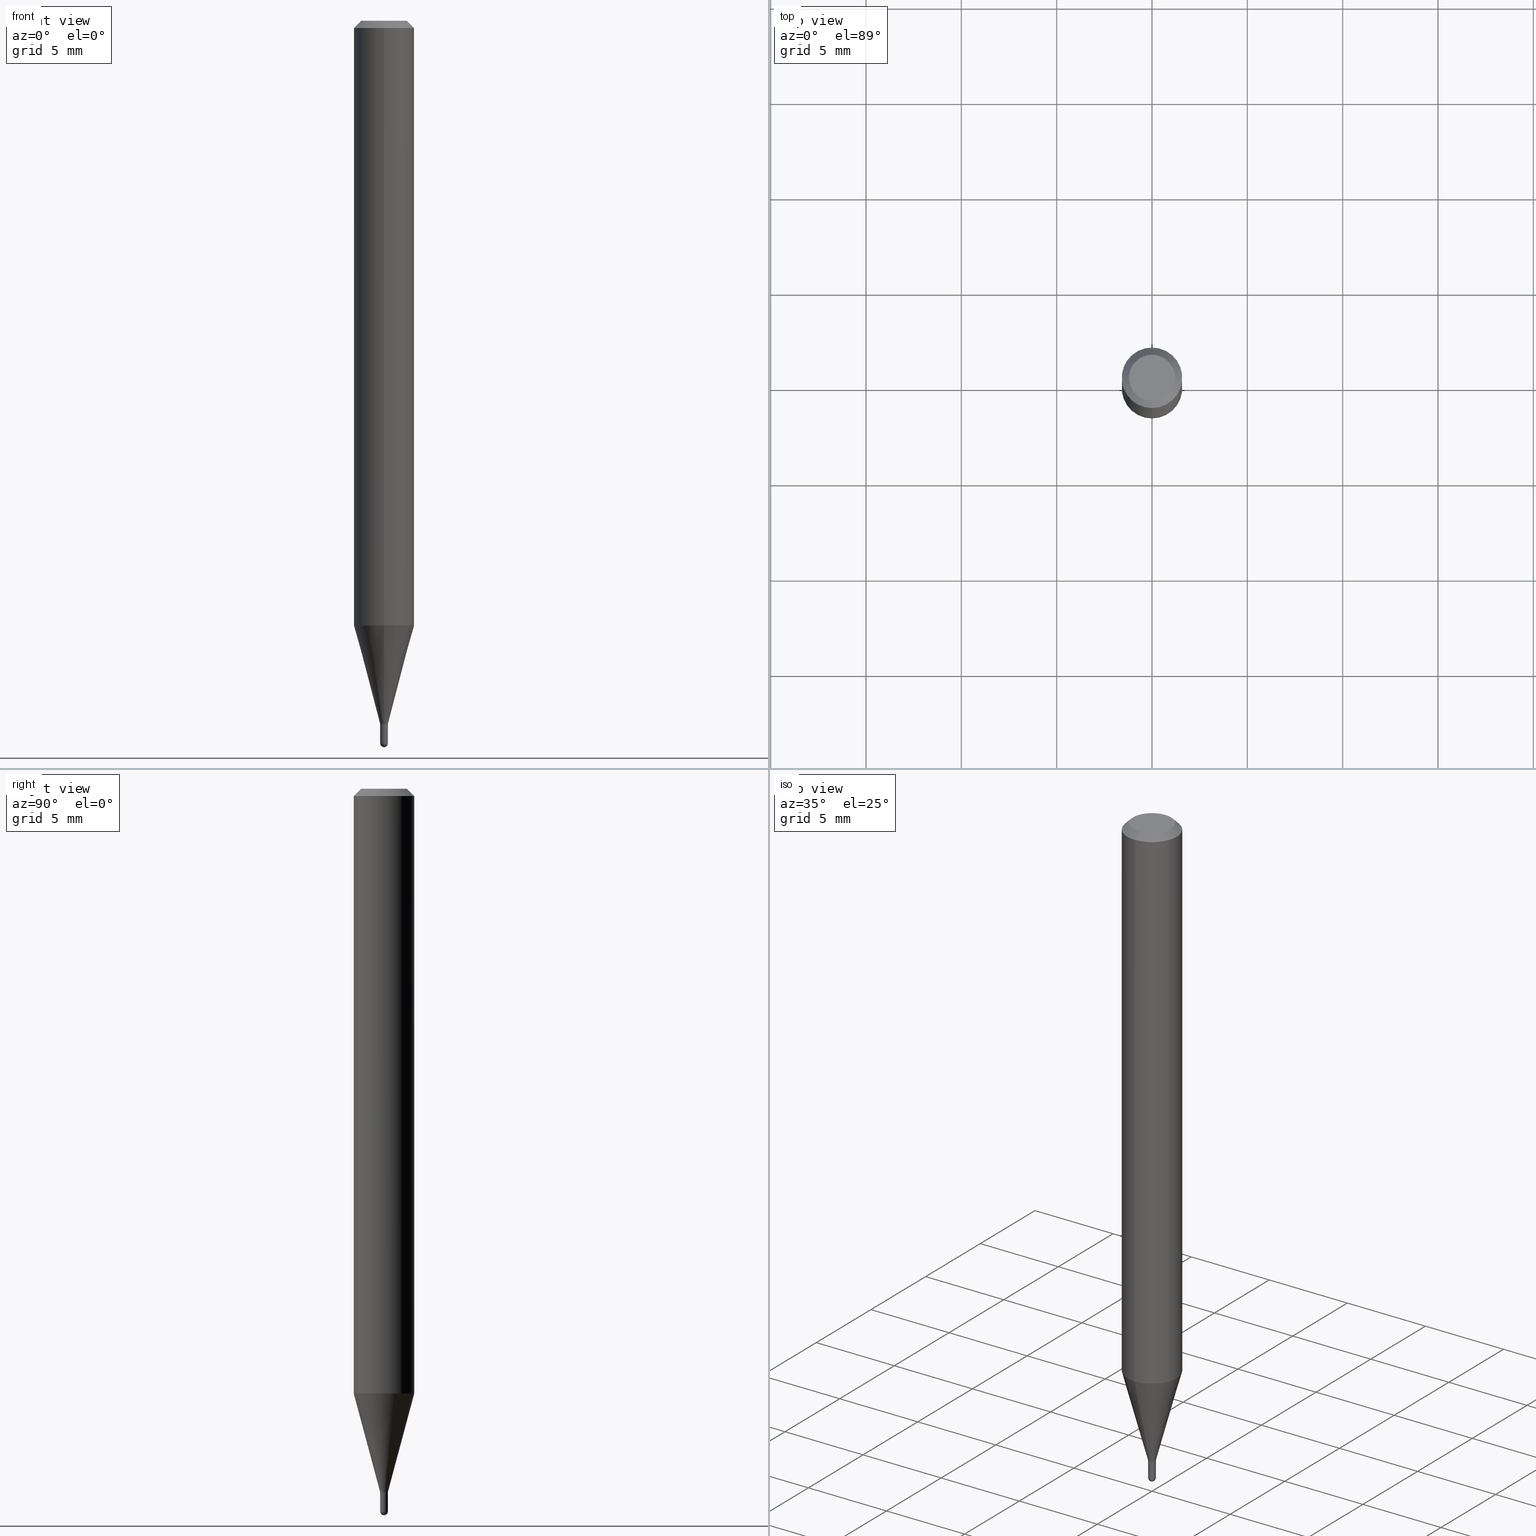
[diagram: canonical four-view strip — front | top / right | iso, engineering-drawing reading convention]
A machine part, canonical four-view strip (front | top / right | iso — engineering-drawing reading convention). The complete STEP part file that produces these views, byte-faithful:
ISO-10303-21;
HEADER;
FILE_DESCRIPTION (( 'STEP AP203' ),
    '1' );
FILE_NAME ('01439.STEP',
    '2024-03-07T20:53:44',
    ( '' ),
    ( '' ),
    'SwSTEP 2.0',
    'SolidWorks 2023',
    '' );
FILE_SCHEMA (( 'CONFIG_CONTROL_DESIGN' ));
ENDSEC;

DATA;
#1 = APPROVAL_DATE_TIME ( #203, #354 ) ;
#2 = DIRECTION ( 'NONE',  ( 2.445475665972653813E-29, -3.491471515236986079E-15, -1.000000000000000000 ) ) ;
#3 = FACE_OUTER_BOUND ( 'NONE', #48, .T. ) ;
#4 = EDGE_CURVE ( 'NONE', #292, #449, #410, .T. ) ;
#5 = AXIS2_PLACEMENT_3D ( 'NONE', #215, #18, #140 ) ;
#6 = APPLICATION_CONTEXT ( 'configuration controlled 3d designs of mechanical parts and assemblies' ) ;
#7 = CC_DESIGN_DATE_AND_TIME_ASSIGNMENT ( #251, #399, ( #351 ) ) ;
#8 = MECHANICAL_CONTEXT ( 'NONE', #281, 'mechanical' ) ;
#9 = LENGTH_MEASURE_WITH_UNIT ( LENGTH_MEASURE( 0.02539999999999999897 ), #484 );
#10 = EDGE_LOOP ( 'NONE', ( #379, #16, #110, #70 ) ) ;
#11 = DIRECTION ( 'NONE',  ( 5.024295867788190974E-15, 0.7071067811865681119, 0.7071067811865270336 ) ) ;
#12 = PRODUCT_DEFINITION_FORMATION_WITH_SPECIFIED_SOURCE ( 'ANY', '', #426, .NOT_KNOWN. ) ;
#13 = SPHERICAL_SURFACE ( 'NONE', #385, 0.008000000000000149353 ) ;
#14 = CARTESIAN_POINT ( 'NONE',  ( 3.668213498958982944E-31, -5.237207272855482496E-17, -0.01500000000000000812 ) ) ;
#15 = ORIENTED_EDGE ( 'NONE', *, *, #463, .T. ) ;
#16 = ORIENTED_EDGE ( 'NONE', *, *, #245, .T. ) ;
#17 = VERTEX_POINT ( 'NONE', #329 ) ;
#18 = DIRECTION ( 'NONE',  ( -2.445475665972653813E-29, 3.491471515236986079E-15, 1.000000000000000000 ) ) ;
#19 = CARTESIAN_POINT ( 'NONE',  ( -5.586370142145429179E-17, -0.008000000000005020456, -1.451500000000000457 ) ) ;
#20 = CIRCLE ( 'NONE', #5, 0.007500000000000001457 ) ;
#21 = DIRECTION ( 'NONE',  ( 1.000000000000000000, -6.982962677686211490E-15, 0.000000000000000000 ) ) ;
#22 = DIRECTION ( 'NONE',  ( -2.445475665972653813E-29, 3.491471515236986079E-15, 1.000000000000000000 ) ) ;
#23 = ORIENTED_EDGE ( 'NONE', *, *, #125, .F. ) ;
#24 = ORIENTED_EDGE ( 'NONE', *, *, #82, .F. ) ;
#25 = DIRECTION ( 'NONE',  ( 6.982962677686265922E-15, 1.000000000000000000, -3.483106191921935554E-15 ) ) ;
#26 = EDGE_LOOP ( 'NONE', ( #475, #294, #132, #405 ) ) ;
#27 = EDGE_CURVE ( 'NONE', #235, #134, #436, .T. ) ;
#28 = CARTESIAN_POINT ( 'NONE',  ( 3.549607929159307835E-29, -5.067870904366486993E-15, -1.451500000000000457 ) ) ;
#29 = APPROVAL ( #65, 'UNSPECIFIED' ) ;
#30 = AXIS2_PLACEMENT_3D ( 'NONE', #28, #341, #320 ) ;
#31 = CARTESIAN_POINT ( 'NONE',  ( 5.684341886080747371E-17, 0.007999999999999925573, -2.793177212189562767E-17 ) ) ;
#32 = CARTESIAN_POINT ( 'NONE',  ( 3.550830666992293868E-29, -5.069616640124104724E-15, -1.452000000000000179 ) ) ;
#33 = EDGE_CURVE ( 'NONE', #222, #292, #20, .T. ) ;
#34 = DIRECTION ( 'NONE',  ( -2.445475665972653813E-29, 3.491471515236985685E-15, 1.000000000000000000 ) ) ;
#35 = AXIS2_PLACEMENT_3D ( 'NONE', #298, #133, #457 ) ;
#36 = CARTESIAN_POINT ( 'NONE',  ( 3.550830666992293868E-29, -5.069616640124104724E-15, -1.452000000000000179 ) ) ;
#37 = AXIS2_PLACEMENT_3D ( 'NONE', #312, #509, #186 ) ;
#38 = DIRECTION ( 'NONE',  ( -2.445475665972653813E-29, 3.491471515236986079E-15, 1.000000000000000000 ) ) ;
#39 =( NAMED_UNIT ( * ) SI_UNIT ( $, .STERADIAN. ) SOLID_ANGLE_UNIT ( ) );
#40 = PRODUCT_DEFINITION_SHAPE ( 'NONE', 'NONE',  #297 ) ;
#41 = PLANE ( 'NONE',  #193 ) ;
#42 = AXIS2_PLACEMENT_3D ( 'NONE', #456, #147, #224 ) ;
#43 = AXIS2_PLACEMENT_3D ( 'NONE', #188, #2, #347 ) ;
#44 = COORDINATED_UNIVERSAL_TIME_OFFSET ( 5, 0, .BEHIND. ) ;
#45 = EDGE_CURVE ( 'NONE', #292, #222, #350, .T. ) ;
#46 = DATE_AND_TIME ( #402, #228 ) ;
#47 = CARTESIAN_POINT ( 'NONE',  ( 3.647955325796880596E-29, -5.210269874993290915E-15, -1.491999999999999993 ) ) ;
#48 = EDGE_LOOP ( 'NONE', ( #403, #369, #24, #128 ) ) ;
#49 = DIRECTION ( 'NONE',  ( -2.445475665972653813E-29, 3.491471515236986079E-15, 1.000000000000000000 ) ) ;
#50 = DIRECTION ( 'NONE',  ( 0.000000000000000000, 0.000000000000000000, 1.000000000000000000 ) ) ;
#51 = EDGE_LOOP ( 'NONE', ( #306, #194, #427, #119 ) ) ;
#52 = PERSON_AND_ORGANIZATION ( #476, #447 ) ;
#53 = VERTEX_POINT ( 'NONE', #289 ) ;
#54 = MANIFOLD_SOLID_BREP ( 'Body-Move/Copy2[1]', #357 ) ;
#55 = DATE_AND_TIME ( #340, #184 ) ;
#56 = MANIFOLD_SOLID_BREP ( 'Body-Move/Copy2[2]', #244 ) ;
#57 = DIRECTION ( 'NONE',  ( -6.982962677686265922E-15, -1.000000000000000000, 3.491471515236985685E-15 ) ) ;
#58 = EDGE_LOOP ( 'NONE', ( #260, #15 ) ) ;
#59 = EDGE_CURVE ( 'NONE', #223, #342, #96, .T. ) ;
#60 = CARTESIAN_POINT ( 'NONE',  ( -0.008000000000000000167, -5.082617111916303545E-15, -1.492000000000000437 ) ) ;
#61 = AXIS2_PLACEMENT_3D ( 'NONE', #258, #265, #57 ) ;
#62 = CC_DESIGN_SECURITY_CLASSIFICATION ( #351, ( #12 ) ) ;
#63 = DIRECTION ( 'NONE',  ( 1.000000000000000000, -6.982962677686211490E-15, 0.000000000000000000 ) ) ;
#64 = ORIENTED_EDGE ( 'NONE', *, *, #168, .F. ) ;
#65 = APPROVAL_STATUS ( 'not_yet_approved' ) ;
#66 = CYLINDRICAL_SURFACE ( 'NONE', #302, 0.06250000000000000000 ) ;
#67 = CARTESIAN_POINT ( 'NONE',  ( 0.000000000000000000, 0.000000000000000000, 0.000000000000000000 ) ) ;
#68 = CARTESIAN_POINT ( 'NONE',  ( -4.364351673553912750E-16, -0.06250000000000005551, -0.01499999999999979128 ) ) ;
#69 = CC_DESIGN_PERSON_AND_ORGANIZATION_ASSIGNMENT ( #249, #404, ( #12 ) ) ;
#70 = ORIENTED_EDGE ( 'NONE', *, *, #397, .F. ) ;
#71 = DIRECTION ( 'NONE',  ( -2.445475665972653813E-29, 3.491471515236986079E-15, 1.000000000000000000 ) ) ;
#72 = CONICAL_SURFACE ( 'NONE', #318, 0.06250000000000000000, 0.7853981633974483900 ) ;
#73 = DIRECTION ( 'NONE',  ( -6.982962677686266711E-15, -1.000000000000000000, 3.491471515236986474E-15 ) ) ;
#74 = CARTESIAN_POINT ( 'NONE',  ( 3.550830666992293868E-29, -5.069616640124104724E-15, -1.452000000000000179 ) ) ;
#75 = EDGE_LOOP ( 'NONE', ( #367, #481, #416, #214, #443 ) ) ;
#76 = CC_DESIGN_PERSON_AND_ORGANIZATION_ASSIGNMENT ( #52, #491, ( #12 ) ) ;
#77 = DIRECTION ( 'NONE',  ( -6.982962677686265922E-15, -1.000000000000000000, 3.491471515236986079E-15 ) ) ;
#78 = DIRECTION ( 'NONE',  ( -6.982962677686265922E-15, -1.000000000000000000, 0.000000000000000000 ) ) ;
#79 = ORIENTED_EDGE ( 'NONE', *, *, #59, .T. ) ;
#80 = LINE ( 'NONE', #234, #495 ) ;
#81 = AXIS2_PLACEMENT_3D ( 'NONE', #201, #50, #359 ) ;
#82 = EDGE_CURVE ( 'NONE', #17, #92, #382, .T. ) ;
#83 = LINE ( 'NONE', #270, #174 ) ;
#84 = CARTESIAN_POINT ( 'NONE',  ( -4.364351673553916201E-16, -0.06250000000000000000, 2.182169697023116300E-16 ) ) ;
#85 = CARTESIAN_POINT ( 'NONE',  ( 0.000000000000000000, 0.000000000000000000, 0.000000000000000000 ) ) ;
#86 = EDGE_CURVE ( 'NONE', #109, #17, #189, .T. ) ;
#87 = CALENDAR_DATE ( 2024, 7, 3 ) ;
#88 = AXIS2_PLACEMENT_3D ( 'NONE', #279, #154, #431 ) ;
#89 = COORDINATED_UNIVERSAL_TIME_OFFSET ( 5, 0, .BEHIND. ) ;
#90 = DIRECTION ( 'NONE',  ( 2.445475665972653813E-29, -3.491471515236985685E-15, -1.000000000000000000 ) ) ;
#91 = DIRECTION ( 'NONE',  ( -2.445475665972653813E-29, 3.491471515236986079E-15, 1.000000000000000000 ) ) ;
#92 = VERTEX_POINT ( 'NONE', #219 ) ;
#93 =( NAMED_UNIT ( * ) PLANE_ANGLE_UNIT ( ) SI_UNIT ( $, .RADIAN. ) );
#94 = ORIENTED_EDGE ( 'NONE', *, *, #480, .T. ) ;
#95 = CONICAL_SURFACE ( 'NONE', #216, 0.007999999999999923839, 0.2617993877991576235 ) ;
#96 = CIRCLE ( 'NONE', #293, 0.04749999999999999362 ) ;
#97 = ADVANCED_FACE ( 'NONE', ( #501 ), #150, .F. ) ;
#98 = EDGE_LOOP ( 'NONE', ( #64, #510, #313, #498 ) ) ;
#99 = DIRECTION ( 'NONE',  ( -2.445468806185136597E-29, 3.491481338843145583E-15, 1.000000000000000000 ) ) ;
#100 = CARTESIAN_POINT ( 'NONE',  ( 2.166883706557991878E-46, -3.093718266572590638E-32, -8.860786213123673200E-18 ) ) ;
#101 = DIRECTION ( 'NONE',  ( -6.982962677686265922E-15, -1.000000000000000000, 0.000000000000000000 ) ) ;
#102 = VERTEX_POINT ( 'NONE', #60 ) ;
#103 = AXIS2_PLACEMENT_3D ( 'NONE', #420, #143, #73 ) ;
#104 = LOCAL_TIME ( 15, 53, 44.00000000000000000, #44 ) ;
#105 = ORIENTED_EDGE ( 'NONE', *, *, #380, .F. ) ;
#106 = CARTESIAN_POINT ( 'NONE',  ( 3.648639458828225116E-29, -5.209290157553974120E-15, -1.492000000000000437 ) ) ;
#107 = CARTESIAN_POINT ( 'NONE',  ( 5.506706202144299774E-17, 0.007499999999994930860, -1.452000000000000179 ) ) ;
#108 = DIRECTION ( 'NONE',  ( -6.982962677686265922E-15, -1.000000000000000000, 0.000000000000000000 ) ) ;
#109 = VERTEX_POINT ( 'NONE', #504 ) ;
#110 = ORIENTED_EDGE ( 'NONE', *, *, #175, .F. ) ;
#111 = PLANE ( 'NONE',  #155 ) ;
#112 = EDGE_CURVE ( 'NONE', #342, #223, #238, .T. ) ;
#113 =( GEOMETRIC_REPRESENTATION_CONTEXT ( 3 ) GLOBAL_UNCERTAINTY_ASSIGNED_CONTEXT ( ( #266 ) ) GLOBAL_UNIT_ASSIGNED_CONTEXT ( ( #444, #93, #39 ) ) REPRESENTATION_CONTEXT ( 'NONE', 'WORKASPACE' ) );
#114 = CARTESIAN_POINT ( 'NONE',  ( 0.008000000000000000167, -5.195324232198600513E-15, -1.492000000000000437 ) ) ;
#115 = CARTESIAN_POINT ( 'NONE',  ( 5.684341886084278756E-17, 0.007999999999994830691, -1.451500000000000457 ) ) ;
#116 = PRODUCT_RELATED_PRODUCT_CATEGORY ( 'detail', '', ( #426 ) ) ;
#117 = CARTESIAN_POINT ( 'NONE',  ( 2.504663143554681771E-16, 0.007999999999994853242, -1.452000000000000179 ) ) ;
#118 = EDGE_LOOP ( 'NONE', ( #299, #181, #218, #465 ) ) ;
#119 = ORIENTED_EDGE ( 'NONE', *, *, #324, .F. ) ;
#120 = DIRECTION ( 'NONE',  ( -2.445475665972653813E-29, 3.491471515236985685E-15, 1.000000000000000000 ) ) ;
#121 = AXIS2_PLACEMENT_3D ( 'NONE', #67, #141, #383 ) ;
#122 = FACE_OUTER_BOUND ( 'NONE', #409, .T. ) ;
#123 = ADVANCED_FACE ( 'NONE', ( #230 ), #66, .T. ) ;
#124 = SECURITY_CLASSIFICATION_LEVEL ( 'unclassified' ) ;
#125 = EDGE_CURVE ( 'NONE', #134, #235, #429, .T. ) ;
#126 = PERSON_AND_ORGANIZATION ( #476, #447 ) ;
#127 = APPROVAL_STATUS ( 'not_yet_approved' ) ;
#128 = ORIENTED_EDGE ( 'NONE', *, *, #86, .F. ) ;
#129 = AXIS2_PLACEMENT_3D ( 'NONE', #462, #71, #225 ) ;
#130 = AXIS2_PLACEMENT_3D ( 'NONE', #353, #240, #393 ) ;
#131 = DIRECTION ( 'NONE',  ( -2.445475665972653813E-29, 3.491471515236986079E-15, 1.000000000000000000 ) ) ;
#132 = ORIENTED_EDGE ( 'NONE', *, *, #27, .F. ) ;
#133 = DIRECTION ( 'NONE',  ( -2.445475665972653813E-29, 3.491471515236986079E-15, 1.000000000000000000 ) ) ;
#134 = VERTEX_POINT ( 'NONE', #381 ) ;
#135 = ORIENTED_EDGE ( 'NONE', *, *, #211, .T. ) ;
#136 = ORIENTED_EDGE ( 'NONE', *, *, #452, .F. ) ;
#137 = FACE_OUTER_BOUND ( 'NONE', #212, .T. ) ;
#138 = ORIENTED_EDGE ( 'NONE', *, *, #445, .F. ) ;
#139 = AXIS2_PLACEMENT_3D ( 'NONE', #14, #441, #144 ) ;
#140 = DIRECTION ( 'NONE',  ( -6.982962677686265922E-15, -1.000000000000000000, 0.000000000000000000 ) ) ;
#141 = DIRECTION ( 'NONE',  ( -2.445468806185136597E-29, 3.491481338843145583E-15, 1.000000000000000000 ) ) ;
#142 = EDGE_CURVE ( 'NONE', #449, #170, #364, .T. ) ;
#143 = DIRECTION ( 'NONE',  ( -2.445475665972653813E-29, 3.491471515236986079E-15, 1.000000000000000000 ) ) ;
#144 = DIRECTION ( 'NONE',  ( -6.982962677686265922E-15, -1.000000000000000000, 3.483106191921935554E-15 ) ) ;
#145 = CARTESIAN_POINT ( 'NONE',  ( 0.000000000000000000, 0.000000000000000000, 0.000000000000000000 ) ) ;
#146 = CARTESIAN_POINT ( 'NONE',  ( -5.237222008261149419E-17, -0.007500000000005071187, -1.452000000000000179 ) ) ;
#147 = DIRECTION ( 'NONE',  ( -2.445475665972653813E-29, 3.491471515236986079E-15, 1.000000000000000000 ) ) ;
#148 = AXIS2_PLACEMENT_3D ( 'NONE', #164, #91, #253 ) ;
#149 = APPROVAL_PERSON_ORGANIZATION ( #360, #354, #197 ) ;
#150 = CYLINDRICAL_SURFACE ( 'NONE', #129, 0.007999999999999925573 ) ;
#151 = CARTESIAN_POINT ( 'NONE',  ( 0.000000000000000000, 0.000000000000000000, 0.000000000000000000 ) ) ;
#152 = FACE_OUTER_BOUND ( 'NONE', #26, .T. ) ;
#153 = EDGE_CURVE ( 'NONE', #17, #235, #233, .T. ) ;
#154 = DIRECTION ( 'NONE',  ( -2.445468806185136597E-29, 3.491481338843145583E-15, 1.000000000000000000 ) ) ;
#155 = AXIS2_PLACEMENT_3D ( 'NONE', #277, #159, #472 ) ;
#156 = EDGE_LOOP ( 'NONE', ( #173, #500, #231, #273 ) ) ;
#157 = DIRECTION ( 'NONE',  ( -2.445468806185136597E-29, 3.491481338843145583E-15, 1.000000000000000000 ) ) ;
#158 = VERTEX_POINT ( 'NONE', #114 ) ;
#159 = DIRECTION ( 'NONE',  ( 2.438088387897960049E-29, -3.491481338843145188E-15, -1.000000000000000000 ) ) ;
#160 = CARTESIAN_POINT ( 'NONE',  ( 3.053428817834770725E-29, -4.359462614825733098E-15, -1.248603230987502810 ) ) ;
#161 = DESIGN_CONTEXT ( 'detailed design', #6, 'design' ) ;
#162 = AXIS2_PLACEMENT_3D ( 'NONE', #85, #131, #330 ) ;
#163 = PERSON_AND_ORGANIZATION ( #476, #447 ) ;
#164 = CARTESIAN_POINT ( 'NONE',  ( 3.053428817834770725E-29, -4.359462614825733098E-15, -1.248603230987502810 ) ) ;
#165 = VECTOR ( 'NONE', #344, 39.37007874015748143 ) ;
#166 = CIRCLE ( 'NONE', #130, 0.007999999999999923839 ) ;
#167 = ADVANCED_FACE ( 'NONE', ( #422 ), #283, .T. ) ;
#168 = EDGE_CURVE ( 'NONE', #342, #235, #226, .T. ) ;
#169 = VERTEX_POINT ( 'NONE', #459 ) ;
#170 = VERTEX_POINT ( 'NONE', #19 ) ;
#171 = FACE_OUTER_BOUND ( 'NONE', #98, .T. ) ;
#172 = PLANE ( 'NONE',  #61 ) ;
#173 = ORIENTED_EDGE ( 'NONE', *, *, #245, .F. ) ;
#174 = VECTOR ( 'NONE', #34, 39.37007874015748143 ) ;
#175 = EDGE_CURVE ( 'NONE', #102, #451, #373, .T. ) ;
#176 = CIRCLE ( 'NONE', #37, 0.008000000000000149353 ) ;
#177 = DIRECTION ( 'NONE',  ( 2.445475665972653813E-29, -3.491471515236986079E-15, -1.000000000000000000 ) ) ;
#178 = LINE ( 'NONE', #146, #319 ) ;
#179 = CYLINDRICAL_SURFACE ( 'NONE', #121, 0.008000000000000000167 ) ;
#180 = LINE ( 'NONE', #502, #494 ) ;
#181 = ORIENTED_EDGE ( 'NONE', *, *, #442, .F. ) ;
#182 = APPROVAL_ROLE ( '' ) ;
#183 = AXIS2_PLACEMENT_3D ( 'NONE', #47, #300, #268 ) ;
#184 = LOCAL_TIME ( 15, 53, 44.00000000000000000, #448 ) ;
#185 = ADVANCED_FACE ( 'NONE', ( #171 ), #72, .T. ) ;
#186 = DIRECTION ( 'NONE',  ( 7.105427357601001859E-15, 1.000000000000000000, 0.000000000000000000 ) ) ;
#187 = ORIENTED_EDGE ( 'NONE', *, *, #112, .T. ) ;
#188 = CARTESIAN_POINT ( 'NONE',  ( 3.668213498958982944E-31, -5.237207272855482496E-17, -0.01500000000000000812 ) ) ;
#189 = LINE ( 'NONE', #308, #310 ) ;
#190 = FACE_OUTER_BOUND ( 'NONE', #227, .T. ) ;
#191 = ADVANCED_FACE ( 'NONE', ( #296 ), #337, .T. ) ;
#192 = AXIS2_PLACEMENT_3D ( 'NONE', #338, #378, #63 ) ;
#193 = AXIS2_PLACEMENT_3D ( 'NONE', #321, #90, #282 ) ;
#194 = ORIENTED_EDGE ( 'NONE', *, *, #168, .T. ) ;
#195 = DIRECTION ( 'NONE',  ( -2.445468806185136877E-29, 3.491481338843145188E-15, 1.000000000000000000 ) ) ;
#196 = DIRECTION ( 'NONE',  ( 4.937700262164548042E-15, 0.7071067811865451302, -0.7071067811865499042 ) ) ;
#197 = APPROVAL_ROLE ( '' ) ;
#198 = APPROVAL_STATUS ( 'not_yet_approved' ) ;
#199 = CIRCLE ( 'NONE', #503, 0.008000000000000000167 ) ;
#200 = ADVANCED_FACE ( 'NONE', ( #261 ), #179, .T. ) ;
#201 = CARTESIAN_POINT ( 'NONE',  ( 0.000000000000000000, 0.000000000000000000, 0.000000000000000000 ) ) ;
#202 = CC_DESIGN_PERSON_AND_ORGANIZATION_ASSIGNMENT ( #325, #250, ( #297 ) ) ;
#203 = DATE_AND_TIME ( #356, #430 ) ;
#204 = DIRECTION ( 'NONE',  ( -6.982962677686266711E-15, -1.000000000000000000, 3.491471515236986474E-15 ) ) ;
#205 = ADVANCED_BREP_SHAPE_REPRESENTATION ( '01439', ( #54, #56, #81 ), #113 ) ;
#206 = ADVANCED_FACE ( 'NONE', ( #371 ), #172, .F. ) ;
#207 = APPLICATION_PROTOCOL_DEFINITION ( 'international standard', 'config_control_design', 1994, #6 ) ;
#208 = AXIS2_PLACEMENT_3D ( 'NONE', #106, #220, #21 ) ;
#209 = CC_DESIGN_APPROVAL ( #354, ( #351 ) ) ;
#210 = ORIENTED_EDGE ( 'NONE', *, *, #4, .F. ) ;
#211 = EDGE_CURVE ( 'NONE', #362, #449, #497, .T. ) ;
#212 = EDGE_LOOP ( 'NONE', ( #210, #489, #275, #339 ) ) ;
#213 = EDGE_CURVE ( 'NONE', #53, #372, #413, .T. ) ;
#214 = ORIENTED_EDGE ( 'NONE', *, *, #280, .T. ) ;
#215 = CARTESIAN_POINT ( 'NONE',  ( 3.550830666992293868E-29, -5.069616640124104724E-15, -1.452000000000000179 ) ) ;
#216 = AXIS2_PLACEMENT_3D ( 'NONE', #74, #38, #389 ) ;
#217 = CONICAL_SURFACE ( 'NONE', #438, 0.007999999999999923839, 0.2617993877991576235 ) ;
#218 = ORIENTED_EDGE ( 'NONE', *, *, #331, .T. ) ;
#219 = CARTESIAN_POINT ( 'NONE',  ( 4.440892098500929873E-16, 0.06249999999999562850, -1.248603230987503032 ) ) ;
#220 = DIRECTION ( 'NONE',  ( -2.445468806185136597E-29, 3.491481338843145583E-15, 1.000000000000000000 ) ) ;
#221 = DIRECTION ( 'NONE',  ( -4.937700262164674260E-15, -0.7071067811865632269, 0.7071067811865319186 ) ) ;
#222 = VERTEX_POINT ( 'NONE', #332 ) ;
#223 = VERTEX_POINT ( 'NONE', #492 ) ;
#224 = DIRECTION ( 'NONE',  ( -6.982962677686265922E-15, -1.000000000000000000, 3.483106191921935554E-15 ) ) ;
#225 = DIRECTION ( 'NONE',  ( -6.982962677686265922E-15, -1.000000000000000000, 3.491471515236986079E-15 ) ) ;
#226 = LINE ( 'NONE', #507, #165 ) ;
#227 = EDGE_LOOP ( 'NONE', ( #315, #454, #136, #264 ) ) ;
#228 = LOCAL_TIME ( 15, 53, 44.00000000000000000, #89 ) ;
#229 = APPROVAL ( #127, 'UNSPECIFIED' ) ;
#230 = FACE_OUTER_BOUND ( 'NONE', #256, .T. ) ;
#231 = ORIENTED_EDGE ( 'NONE', *, *, #237, .F. ) ;
#232 = CARTESIAN_POINT ( 'NONE',  ( 4.364351673553919652E-16, 0.06249999999999995143, -0.01500000000000022669 ) ) ;
#233 = LINE ( 'NONE', #84, #446 ) ;
#234 = CARTESIAN_POINT ( 'NONE',  ( 5.684341886084298478E-17, 0.007999999999994854977, -1.452000000000000179 ) ) ;
#235 = VERTEX_POINT ( 'NONE', #68 ) ;
#236 = CARTESIAN_POINT ( 'NONE',  ( 0.000000000000000000, 0.000000000000000000, 0.000000000000000000 ) ) ;
#237 = EDGE_CURVE ( 'NONE', #158, #169, #199, .T. ) ;
#238 = CIRCLE ( 'NONE', #103, 0.04749999999999999362 ) ;
#239 = CC_DESIGN_APPROVAL ( #229, ( #297 ) ) ;
#240 = DIRECTION ( 'NONE',  ( -2.445475665972653813E-29, 3.491471515236986079E-15, 1.000000000000000000 ) ) ;
#241 = LINE ( 'NONE', #421, #358 ) ;
#242 = ADVANCED_FACE ( 'NONE', ( #137 ), #343, .T. ) ;
#243 = CARTESIAN_POINT ( 'NONE',  ( 3.550820706580818935E-29, -5.069630904000248312E-15, -1.452000000000000179 ) ) ;
#244 = CLOSED_SHELL ( 'NONE', ( #493, #376, #419, #407, #388, #317, #123, #185, #505, #206, #242, #97 ) ) ;
#245 = EDGE_CURVE ( 'NONE', #307, #451, #408, .T. ) ;
#246 = LOCAL_TIME ( 15, 53, 44.00000000000000000, #387 ) ;
#247 = DATE_AND_TIME ( #87, #104 ) ;
#248 = COORDINATED_UNIVERSAL_TIME_OFFSET ( 5, 0, .BEHIND. ) ;
#249 = PERSON_AND_ORGANIZATION ( #476, #447 ) ;
#250 = PERSON_AND_ORGANIZATION_ROLE ( 'creator' ) ;
#251 = DATE_AND_TIME ( #395, #246 ) ;
#252 = DIRECTION ( 'NONE',  ( -2.445475665972653813E-29, 3.491471515236986079E-15, 1.000000000000000000 ) ) ;
#253 = DIRECTION ( 'NONE',  ( -6.982962677686265922E-15, -1.000000000000000000, 4.370956789862821150E-15 ) ) ;
#254 = AXIS2_PLACEMENT_3D ( 'NONE', #301, #22, #108 ) ;
#255 = CIRCLE ( 'NONE', #460, 0.06250000000000000000 ) ;
#256 = EDGE_LOOP ( 'NONE', ( #105, #276, #485, #23 ) ) ;
#257 = ORIENTED_EDGE ( 'NONE', *, *, #434, .F. ) ;
#258 = CARTESIAN_POINT ( 'NONE',  ( 3.550830666992293868E-29, -5.069616640124104724E-15, -1.452000000000000179 ) ) ;
#259 = ORIENTED_EDGE ( 'NONE', *, *, #86, .T. ) ;
#260 = ORIENTED_EDGE ( 'NONE', *, *, #213, .T. ) ;
#261 = FACE_OUTER_BOUND ( 'NONE', #75, .T. ) ;
#262 = AXIS2_PLACEMENT_3D ( 'NONE', #36, #424, #78 ) ;
#263 = AXIS2_PLACEMENT_3D ( 'NONE', #236, #390, #77 ) ;
#264 = ORIENTED_EDGE ( 'NONE', *, *, #267, .F. ) ;
#265 = DIRECTION ( 'NONE',  ( -2.445475665972653813E-29, 3.491471515236985685E-15, 1.000000000000000000 ) ) ;
#266 = UNCERTAINTY_MEASURE_WITH_UNIT (LENGTH_MEASURE( 1.000000000000000082E-05 ), #444, 'distance_accuracy_value', 'NONE');
#267 = EDGE_CURVE ( 'NONE', #222, #170, #178, .T. ) ;
#268 = DIRECTION ( 'NONE',  ( -6.982962677686265133E-15, -1.000000000000000000, 0.000000000000000000 ) ) ;
#269 = ORIENTED_EDGE ( 'NONE', *, *, #480, .F. ) ;
#270 = CARTESIAN_POINT ( 'NONE',  ( -5.586370142148960564E-17, -0.007999999999999925573, 2.793177212189562767E-17 ) ) ;
#271 = VECTOR ( 'NONE', #196, 39.37007874015748143 ) ;
#272 = CARTESIAN_POINT ( 'NONE',  ( -5.586370142145416853E-17, -0.008000000000005284134, -1.492000000000000437 ) ) ;
#273 = ORIENTED_EDGE ( 'NONE', *, *, #348, .F. ) ;
#274 = LINE ( 'NONE', #232, #271 ) ;
#275 = ORIENTED_EDGE ( 'NONE', *, *, #267, .T. ) ;
#276 = ORIENTED_EDGE ( 'NONE', *, *, #445, .T. ) ;
#277 = CARTESIAN_POINT ( 'NONE',  ( 5.586370142152563440E-17, 0.007999999999994931305, -1.452000000000000179 ) ) ;
#278 = SHAPE_DEFINITION_REPRESENTATION ( #40, #205 ) ;
#279 = CARTESIAN_POINT ( 'NONE',  ( 3.648639458828225116E-29, -5.209290157553974120E-15, -1.492000000000000437 ) ) ;
#280 = EDGE_CURVE ( 'NONE', #158, #53, #180, .T. ) ;
#281 = APPLICATION_CONTEXT ( 'configuration controlled 3d designs of mechanical parts and assemblies' ) ;
#282 = DIRECTION ( 'NONE',  ( 6.982962677686265922E-15, 1.000000000000000000, -3.491471515236985685E-15 ) ) ;
#283 = SPHERICAL_SURFACE ( 'NONE', #183, 0.008000000000000149353 ) ;
#284 = ORIENTED_EDGE ( 'NONE', *, *, #412, .T. ) ;
#285 = AXIS2_PLACEMENT_3D ( 'NONE', #345, #508, #305 ) ;
#286 = CYLINDRICAL_SURFACE ( 'NONE', #162, 0.007999999999999925573 ) ;
#287 = ORIENTED_EDGE ( 'NONE', *, *, #331, .F. ) ;
#288 = DIRECTION ( 'NONE',  ( 1.000000000000000000, -6.982962677686211490E-15, 0.000000000000000000 ) ) ;
#289 = CARTESIAN_POINT ( 'NONE',  ( 0.008000000000000000167, -5.125494605421738004E-15, -1.452000000000000179 ) ) ;
#290 = EDGE_LOOP ( 'NONE', ( #322, #295 ) ) ;
#291 = DIRECTION ( 'NONE',  ( -6.982962677686265133E-15, -1.000000000000000000, 0.000000000000000000 ) ) ;
#292 = VERTEX_POINT ( 'NONE', #107 ) ;
#293 = AXIS2_PLACEMENT_3D ( 'NONE', #100, #49, #204 ) ;
#294 = ORIENTED_EDGE ( 'NONE', *, *, #380, .T. ) ;
#295 = ORIENTED_EDGE ( 'NONE', *, *, #45, .F. ) ;
#296 = FACE_OUTER_BOUND ( 'NONE', #439, .T. ) ;
#297 = PRODUCT_DEFINITION ( 'UNKNOWN', '', #12, #161 ) ;
#298 = CARTESIAN_POINT ( 'NONE',  ( 3.550830666992293868E-29, -5.069616640124104724E-15, -1.452000000000000179 ) ) ;
#299 = ORIENTED_EDGE ( 'NONE', *, *, #211, .F. ) ;
#300 = DIRECTION ( 'NONE',  ( 1.000000000000000000, -6.982962677686265133E-15, 4.883557194083112340E-29 ) ) ;
#301 = CARTESIAN_POINT ( 'NONE',  ( 3.550830666992293868E-29, -5.069616640124104724E-15, -1.452000000000000179 ) ) ;
#302 = AXIS2_PLACEMENT_3D ( 'NONE', #151, #464, #453 ) ;
#303 = APPROVAL_PERSON_ORGANIZATION ( #377, #29, #182 ) ;
#304 = CC_DESIGN_PERSON_AND_ORGANIZATION_ASSIGNMENT ( #437, #506, ( #351 ) ) ;
#305 = DIRECTION ( 'NONE',  ( -6.982962677686265922E-15, -1.000000000000000000, 0.000000000000000000 ) ) ;
#306 = ORIENTED_EDGE ( 'NONE', *, *, #112, .F. ) ;
#307 = VERTEX_POINT ( 'NONE', #418 ) ;
#308 = CARTESIAN_POINT ( 'NONE',  ( -5.586370142145409457E-17, -0.008000000000004994435, -1.452000000000000179 ) ) ;
#309 = DIRECTION ( 'NONE',  ( -2.445475665972653813E-29, 3.491471515236986079E-15, 1.000000000000000000 ) ) ;
#310 = VECTOR ( 'NONE', #468, 39.37007874015748143 ) ;
#311 = CONICAL_SURFACE ( 'NONE', #43, 0.06250000000000000000, 0.7853981633974483900 ) ;
#312 = CARTESIAN_POINT ( 'NONE',  ( 3.647955325796880596E-29, -5.210269874993290915E-15, -1.491999999999999993 ) ) ;
#313 = ORIENTED_EDGE ( 'NONE', *, *, #324, .T. ) ;
#314 = CYLINDRICAL_SURFACE ( 'NONE', #263, 0.06250000000000000000 ) ;
#315 = ORIENTED_EDGE ( 'NONE', *, *, #33, .T. ) ;
#316 = DIRECTION ( 'NONE',  ( -6.982962677686265922E-15, -1.000000000000000000, 4.370956789862821150E-15 ) ) ;
#317 = ADVANCED_FACE ( 'NONE', ( #122 ), #95, .T. ) ;
#318 = AXIS2_PLACEMENT_3D ( 'NONE', #335, #177, #25 ) ;
#319 = VECTOR ( 'NONE', #221, 39.37007874015748143 ) ;
#320 = DIRECTION ( 'NONE',  ( -6.982962677686265922E-15, -1.000000000000000000, 0.000000000000000000 ) ) ;
#321 = CARTESIAN_POINT ( 'NONE',  ( 3.316907271900976096E-16, 0.04749999999999999362, -1.702752900803186501E-16 ) ) ;
#322 = ORIENTED_EDGE ( 'NONE', *, *, #33, .F. ) ;
#323 = PERSON_AND_ORGANIZATION_ROLE ( 'design_owner' ) ;
#324 = EDGE_CURVE ( 'NONE', #223, #134, #274, .T. ) ;
#325 = PERSON_AND_ORGANIZATION ( #476, #447 ) ;
#326 = VECTOR ( 'NONE', #120, 39.37007874015748143 ) ;
#327 = AXIS2_PLACEMENT_3D ( 'NONE', #440, #252, #433 ) ;
#328 = APPLICATION_PROTOCOL_DEFINITION ( 'international standard', 'config_control_design', 1994, #281 ) ;
#329 = CARTESIAN_POINT ( 'NONE',  ( -4.364351673553611504E-16, -0.06250000000000437150, -1.248603230987502588 ) ) ;
#330 = DIRECTION ( 'NONE',  ( -6.982962677686265922E-15, -1.000000000000000000, 3.491471515236986079E-15 ) ) ;
#331 = EDGE_CURVE ( 'NONE', #109, #170, #83, .T. ) ;
#332 = CARTESIAN_POINT ( 'NONE',  ( -5.237222008261149419E-17, -0.007500000000005071187, -1.452000000000000179 ) ) ;
#333 = DATE_TIME_ROLE ( 'creation_date' ) ;
#334 = AXIS2_PLACEMENT_3D ( 'NONE', #145, #417, #458 ) ;
#335 = CARTESIAN_POINT ( 'NONE',  ( 3.668213498958982944E-31, -5.237207272855482496E-17, -0.01500000000000000812 ) ) ;
#336 = EDGE_LOOP ( 'NONE', ( #79, #187 ) ) ;
#337 = CYLINDRICAL_SURFACE ( 'NONE', #334, 0.008000000000000000167 ) ;
#338 = CARTESIAN_POINT ( 'NONE',  ( 3.550820706580818935E-29, -5.069630904000248312E-15, -1.452000000000000179 ) ) ;
#339 = ORIENTED_EDGE ( 'NONE', *, *, #142, .F. ) ;
#340 = CALENDAR_DATE ( 2024, 7, 3 ) ;
#341 = DIRECTION ( 'NONE',  ( -2.445475665972653813E-29, 3.491471515236986079E-15, 1.000000000000000000 ) ) ;
#342 = VERTEX_POINT ( 'NONE', #386 ) ;
#343 = CONICAL_SURFACE ( 'NONE', #254, 0.007500000000000001457, 0.7853981633974739252 ) ;
#344 = DIRECTION ( 'NONE',  ( -4.851104656540964275E-15, -0.7071067811865500152, -0.7071067811865450192 ) ) ;
#345 = CARTESIAN_POINT ( 'NONE',  ( 3.549607929159307835E-29, -5.067870904366486993E-15, -1.451500000000000457 ) ) ;
#346 = DIRECTION ( 'NONE',  ( -2.445475665972653813E-29, 3.491471515236985685E-15, 1.000000000000000000 ) ) ;
#347 = DIRECTION ( 'NONE',  ( 6.982962677686265922E-15, 1.000000000000000000, -3.483106191921935554E-15 ) ) ;
#348 = EDGE_CURVE ( 'NONE', #451, #158, #469, .T. ) ;
#349 = DIRECTION ( 'NONE',  ( 1.000000000000000000, -6.982962677686211490E-15, 0.000000000000000000 ) ) ;
#350 = CIRCLE ( 'NONE', #35, 0.007500000000000001457 ) ;
#351 = SECURITY_CLASSIFICATION ( '', '', #124 ) ;
#352 = FACE_OUTER_BOUND ( 'NONE', #51, .T. ) ;
#353 = CARTESIAN_POINT ( 'NONE',  ( 3.550830666992293868E-29, -5.069616640124104724E-15, -1.452000000000000179 ) ) ;
#354 = APPROVAL ( #198, 'UNSPECIFIED' ) ;
#355 = FACE_OUTER_BOUND ( 'NONE', #10, .T. ) ;
#356 = CALENDAR_DATE ( 2024, 7, 3 ) ;
#357 = CLOSED_SHELL ( 'NONE', ( #191, #167, #368, #471, #200 ) ) ;
#358 = VECTOR ( 'NONE', #195, 39.37007874015748143 ) ;
#359 = DIRECTION ( 'NONE',  ( 1.000000000000000000, 0.000000000000000000, 0.000000000000000000 ) ) ;
#360 = PERSON_AND_ORGANIZATION ( #476, #447 ) ;
#361 = FACE_OUTER_BOUND ( 'NONE', #473, .T. ) ;
#362 = VERTEX_POINT ( 'NONE', #117 ) ;
#363 = CARTESIAN_POINT ( 'NONE',  ( 5.329070518204302303E-17, 0.007499999999994930860, -1.452000000000000179 ) ) ;
#364 = CIRCLE ( 'NONE', #30, 0.007999999999999925573 ) ;
#365 = CC_DESIGN_APPROVAL ( #29, ( #12 ) ) ;
#366 = DIRECTION ( 'NONE',  ( 1.000000000000000000, -6.982962677686265133E-15, 4.883557194083112340E-29 ) ) ;
#367 = ORIENTED_EDGE ( 'NONE', *, *, #412, .F. ) ;
#368 = ADVANCED_FACE ( 'NONE', ( #474 ), #111, .F. ) ;
#369 = ORIENTED_EDGE ( 'NONE', *, *, #434, .T. ) ;
#370 = CC_DESIGN_DATE_AND_TIME_ASSIGNMENT ( #46, #333, ( #297 ) ) ;
#371 = FACE_OUTER_BOUND ( 'NONE', #290, .T. ) ;
#372 = VERTEX_POINT ( 'NONE', #511 ) ;
#373 = CIRCLE ( 'NONE', #208, 0.008000000000000000167 ) ;
#374 = CIRCLE ( 'NONE', #392, 0.008000000000000000167 ) ;
#375 = DIRECTION ( 'NONE',  ( 1.000000000000000000, -6.982962677686211490E-15, 0.000000000000000000 ) ) ;
#376 = ADVANCED_FACE ( 'NONE', ( #190 ), #486, .T. ) ;
#377 = PERSON_AND_ORGANIZATION ( #476, #447 ) ;
#378 = DIRECTION ( 'NONE',  ( -2.445468806185136597E-29, 3.491481338843145583E-15, 1.000000000000000000 ) ) ;
#379 = ORIENTED_EDGE ( 'NONE', *, *, #425, .F. ) ;
#380 = EDGE_CURVE ( 'NONE', #92, #134, #394, .T. ) ;
#381 = CARTESIAN_POINT ( 'NONE',  ( 4.440892098500932831E-16, 0.06249999999999995143, -0.01500000000000022669 ) ) ;
#382 = CIRCLE ( 'NONE', #148, 0.06250000000000000000 ) ;
#383 = DIRECTION ( 'NONE',  ( 1.000000000000000000, -6.982962677686266711E-15, 4.876176775795935793E-29 ) ) ;
#384 = CIRCLE ( 'NONE', #327, 0.007999999999999923839 ) ;
#385 = AXIS2_PLACEMENT_3D ( 'NONE', #488, #366, #291 ) ;
#386 = CARTESIAN_POINT ( 'NONE',  ( -3.773273898774340269E-16, -0.04749999999999999362, 1.569841107606331826E-16 ) ) ;
#387 = COORDINATED_UNIVERSAL_TIME_OFFSET ( 5, 0, .BEHIND. ) ;
#388 = ADVANCED_FACE ( 'NONE', ( #3 ), #217, .T. ) ;
#389 = DIRECTION ( 'NONE',  ( -6.982962677686267499E-15, -1.000000000000000000, 0.000000000000000000 ) ) ;
#390 = DIRECTION ( 'NONE',  ( -2.445475665972653813E-29, 3.491471515236986079E-15, 1.000000000000000000 ) ) ;
#391 = VECTOR ( 'NONE', #11, 39.37007874015748143 ) ;
#392 = AXIS2_PLACEMENT_3D ( 'NONE', #243, #482, #288 ) ;
#393 = DIRECTION ( 'NONE',  ( -6.982962677686267499E-15, -1.000000000000000000, 0.000000000000000000 ) ) ;
#394 = LINE ( 'NONE', #466, #326 ) ;
#395 = CALENDAR_DATE ( 2024, 7, 3 ) ;
#396 = ORIENTED_EDGE ( 'NONE', *, *, #280, .F. ) ;
#397 = EDGE_CURVE ( 'NONE', #169, #102, #487, .T. ) ;
#398 = FACE_OUTER_BOUND ( 'NONE', #336, .T. ) ;
#399 = DATE_TIME_ROLE ( 'classification_date' ) ;
#400 = VECTOR ( 'NONE', #455, 39.37007874015748143 ) ;
#401 = APPROVAL_DATE_TIME ( #247, #229 ) ;
#402 = CALENDAR_DATE ( 2024, 7, 3 ) ;
#403 = ORIENTED_EDGE ( 'NONE', *, *, #442, .T. ) ;
#404 = PERSON_AND_ORGANIZATION_ROLE ( 'design_supplier' ) ;
#405 = ORIENTED_EDGE ( 'NONE', *, *, #153, .F. ) ;
#406 = APPROVAL_DATE_TIME ( #55, #29 ) ;
#407 = ADVANCED_FACE ( 'NONE', ( #152 ), #314, .T. ) ;
#408 = CIRCLE ( 'NONE', #478, 0.008000000000000149353 ) ;
#409 = EDGE_LOOP ( 'NONE', ( #257, #94, #259, #138 ) ) ;
#410 = LINE ( 'NONE', #363, #391 ) ;
#411 = DIRECTION ( 'NONE',  ( -1.000000000000000000, 6.982962677686265922E-15, -4.883557194083112340E-29 ) ) ;
#412 = EDGE_CURVE ( 'NONE', #102, #372, #241, .T. ) ;
#413 = CIRCLE ( 'NONE', #192, 0.008000000000000000167 ) ;
#414 = ORIENTED_EDGE ( 'NONE', *, *, #142, .T. ) ;
#415 = CIRCLE ( 'NONE', #285, 0.007999999999999925573 ) ;
#416 = ORIENTED_EDGE ( 'NONE', *, *, #348, .T. ) ;
#417 = DIRECTION ( 'NONE',  ( -2.445468806185136597E-29, 3.491481338843145583E-15, 1.000000000000000000 ) ) ;
#418 = CARTESIAN_POINT ( 'NONE',  ( 3.667177009730690077E-29, -5.238691584423695737E-15, -1.500000000000000222 ) ) ;
#419 = ADVANCED_FACE ( 'NONE', ( #352 ), #311, .T. ) ;
#420 = CARTESIAN_POINT ( 'NONE',  ( 2.166883706557991878E-46, -3.093718266572590638E-32, -8.860786213123673200E-18 ) ) ;
#421 = CARTESIAN_POINT ( 'NONE',  ( -0.008000000000000000167, 5.684341886080801605E-17, -3.935148072203924667E-31 ) ) ;
#422 = FACE_OUTER_BOUND ( 'NONE', #156, .T. ) ;
#423 = CARTESIAN_POINT ( 'NONE',  ( 3.648639458828225116E-29, -5.209290157553974120E-15, -1.492000000000000437 ) ) ;
#424 = DIRECTION ( 'NONE',  ( -2.445475665972653813E-29, 3.491471515236986079E-15, 1.000000000000000000 ) ) ;
#425 = EDGE_CURVE ( 'NONE', #307, #169, #176, .T. ) ;
#426 = PRODUCT ( '01439', '01439', '', ( #8 ) ) ;
#427 = ORIENTED_EDGE ( 'NONE', *, *, #27, .T. ) ;
#428 = DIRECTION ( 'NONE',  ( -6.982962677686267499E-15, -1.000000000000000000, 0.000000000000000000 ) ) ;
#429 = CIRCLE ( 'NONE', #42, 0.06250000000000000000 ) ;
#430 = LOCAL_TIME ( 15, 53, 44.00000000000000000, #248 ) ;
#431 = DIRECTION ( 'NONE',  ( 1.000000000000000000, -6.982962677686211490E-15, 0.000000000000000000 ) ) ;
#432 = ORIENTED_EDGE ( 'NONE', *, *, #397, .T. ) ;
#433 = DIRECTION ( 'NONE',  ( -6.982962677686267499E-15, -1.000000000000000000, 0.000000000000000000 ) ) ;
#434 = EDGE_CURVE ( 'NONE', #362, #92, #80, .T. ) ;
#435 = APPROVAL_ROLE ( '' ) ;
#436 = CIRCLE ( 'NONE', #139, 0.06250000000000000000 ) ;
#437 = PERSON_AND_ORGANIZATION ( #476, #447 ) ;
#438 = AXIS2_PLACEMENT_3D ( 'NONE', #32, #470, #428 ) ;
#439 = EDGE_LOOP ( 'NONE', ( #432, #284, #467, #396, #496 ) ) ;
#440 = CARTESIAN_POINT ( 'NONE',  ( 3.550830666992293868E-29, -5.069616640124104724E-15, -1.452000000000000179 ) ) ;
#441 = DIRECTION ( 'NONE',  ( -2.445475665972653813E-29, 3.491471515236986079E-15, 1.000000000000000000 ) ) ;
#442 = EDGE_CURVE ( 'NONE', #109, #362, #166, .T. ) ;
#443 = ORIENTED_EDGE ( 'NONE', *, *, #463, .F. ) ;
#444 =( CONVERSION_BASED_UNIT ( 'INCH', #9 ) LENGTH_UNIT ( ) NAMED_UNIT ( #490 ) );
#445 = EDGE_CURVE ( 'NONE', #92, #17, #255, .T. ) ;
#446 = VECTOR ( 'NONE', #346, 39.37007874015748143 ) ;
#447 = ORGANIZATION ( 'UNSPECIFIED', 'UNSPECIFIED', '' ) ;
#448 = COORDINATED_UNIVERSAL_TIME_OFFSET ( 5, 0, .BEHIND. ) ;
#449 = VERTEX_POINT ( 'NONE', #115 ) ;
#450 = CARTESIAN_POINT ( 'NONE',  ( 3.647955325796880596E-29, -5.210269874993290915E-15, -1.491999999999999993 ) ) ;
#451 = VERTEX_POINT ( 'NONE', #272 ) ;
#452 = EDGE_CURVE ( 'NONE', #170, #449, #415, .T. ) ;
#453 = DIRECTION ( 'NONE',  ( -6.982962677686265922E-15, -1.000000000000000000, 3.491471515236986079E-15 ) ) ;
#454 = ORIENTED_EDGE ( 'NONE', *, *, #4, .T. ) ;
#455 = DIRECTION ( 'NONE',  ( -2.445475665972653813E-29, 3.491471515236985685E-15, 1.000000000000000000 ) ) ;
#456 = CARTESIAN_POINT ( 'NONE',  ( 3.668213498958982944E-31, -5.237207272855482496E-17, -0.01500000000000000812 ) ) ;
#457 = DIRECTION ( 'NONE',  ( -6.982962677686265922E-15, -1.000000000000000000, 0.000000000000000000 ) ) ;
#458 = DIRECTION ( 'NONE',  ( 1.000000000000000000, -6.982962677686266711E-15, 4.876176775795935793E-29 ) ) ;
#459 = CARTESIAN_POINT ( 'NONE',  ( 5.684341886084501856E-17, 0.007999999999994865385, -1.492000000000000437 ) ) ;
#460 = AXIS2_PLACEMENT_3D ( 'NONE', #160, #309, #316 ) ;
#461 = DIRECTION ( 'NONE',  ( -2.445468806185136877E-29, 3.491481338843145188E-15, 1.000000000000000000 ) ) ;
#462 = CARTESIAN_POINT ( 'NONE',  ( 0.000000000000000000, 0.000000000000000000, 0.000000000000000000 ) ) ;
#463 = EDGE_CURVE ( 'NONE', #372, #53, #374, .T. ) ;
#464 = DIRECTION ( 'NONE',  ( -2.445475665972653813E-29, 3.491471515236986079E-15, 1.000000000000000000 ) ) ;
#465 = ORIENTED_EDGE ( 'NONE', *, *, #452, .T. ) ;
#466 = CARTESIAN_POINT ( 'NONE',  ( 4.440892098500625669E-16, 0.06250000000000000000, -2.182169697023116300E-16 ) ) ;
#467 = ORIENTED_EDGE ( 'NONE', *, *, #213, .F. ) ;
#468 = DIRECTION ( 'NONE',  ( -1.807323732225379838E-15, -0.2588190451025252914, 0.9659258262890670910 ) ) ;
#469 = CIRCLE ( 'NONE', #88, 0.008000000000000000167 ) ;
#470 = DIRECTION ( 'NONE',  ( -2.445475665972653813E-29, 3.491471515236986079E-15, 1.000000000000000000 ) ) ;
#471 = ADVANCED_FACE ( 'NONE', ( #355 ), #13, .T. ) ;
#472 = DIRECTION ( 'NONE',  ( -1.000000000000000000, 6.982962677686265922E-15, -4.876176775795935793E-29 ) ) ;
#473 = EDGE_LOOP ( 'NONE', ( #269, #135, #414, #287 ) ) ;
#474 = FACE_OUTER_BOUND ( 'NONE', #58, .T. ) ;
#475 = ORIENTED_EDGE ( 'NONE', *, *, #82, .T. ) ;
#476 = PERSON ( 'UNSPECIFIED', 'UNSPECIFIED', 'UNSPECIFIED', ('UNSPECIFIED'), ('UNSPECIFIED'), ('UNSPECIFIED') ) ;
#477 = DIRECTION ( 'NONE',  ( 1.839019923739650408E-15, 0.2588190451025320082, 0.9659258262890650926 ) ) ;
#478 = AXIS2_PLACEMENT_3D ( 'NONE', #450, #411, #101 ) ;
#479 = APPROVAL_PERSON_ORGANIZATION ( #126, #229, #435 ) ;
#480 = EDGE_CURVE ( 'NONE', #362, #109, #384, .T. ) ;
#481 = ORIENTED_EDGE ( 'NONE', *, *, #175, .T. ) ;
#482 = DIRECTION ( 'NONE',  ( -2.445468806185136597E-29, 3.491481338843145583E-15, 1.000000000000000000 ) ) ;
#483 = CC_DESIGN_PERSON_AND_ORGANIZATION_ASSIGNMENT ( #163, #323, ( #426 ) ) ;
#484 =( LENGTH_UNIT ( ) NAMED_UNIT ( * ) SI_UNIT ( $, .METRE. ) );
#485 = ORIENTED_EDGE ( 'NONE', *, *, #153, .T. ) ;
#486 = CONICAL_SURFACE ( 'NONE', #262, 0.007500000000000001457, 0.7853981633974739252 ) ;
#487 = CIRCLE ( 'NONE', #512, 0.008000000000000000167 ) ;
#488 = CARTESIAN_POINT ( 'NONE',  ( 3.647955325796880596E-29, -5.210269874993290915E-15, -1.491999999999999993 ) ) ;
#489 = ORIENTED_EDGE ( 'NONE', *, *, #45, .T. ) ;
#490 = DIMENSIONAL_EXPONENTS ( 1.000000000000000000, 0.000000000000000000, 0.000000000000000000, 0.000000000000000000, 0.000000000000000000, 0.000000000000000000, 0.000000000000000000 ) ;
#491 = PERSON_AND_ORGANIZATION_ROLE ( 'creator' ) ;
#492 = CARTESIAN_POINT ( 'NONE',  ( 3.840629472727447874E-16, 0.04749999999999999362, -1.747056831868805136E-16 ) ) ;
#493 = ADVANCED_FACE ( 'NONE', ( #361 ), #286, .F. ) ;
#494 = VECTOR ( 'NONE', #461, 39.37007874015748143 ) ;
#495 = VECTOR ( 'NONE', #477, 39.37007874015748854 ) ;
#496 = ORIENTED_EDGE ( 'NONE', *, *, #237, .T. ) ;
#497 = LINE ( 'NONE', #31, #400 ) ;
#498 = ORIENTED_EDGE ( 'NONE', *, *, #125, .T. ) ;
#499 = CARTESIAN_POINT ( 'NONE',  ( 3.648639458828225116E-29, -5.209290157553974120E-15, -1.492000000000000437 ) ) ;
#500 = ORIENTED_EDGE ( 'NONE', *, *, #425, .T. ) ;
#501 = FACE_OUTER_BOUND ( 'NONE', #118, .T. ) ;
#502 = CARTESIAN_POINT ( 'NONE',  ( 0.008000000000000000167, -5.586370142149013566E-17, 3.900941420636748599E-31 ) ) ;
#503 = AXIS2_PLACEMENT_3D ( 'NONE', #499, #99, #375 ) ;
#504 = CARTESIAN_POINT ( 'NONE',  ( -5.586370142145409457E-17, -0.008000000000004994435, -1.452000000000000179 ) ) ;
#505 = ADVANCED_FACE ( 'NONE', ( #398 ), #41, .F. ) ;
#506 = PERSON_AND_ORGANIZATION_ROLE ( 'classification_officer' ) ;
#507 = CARTESIAN_POINT ( 'NONE',  ( -4.287811248607203282E-16, -0.06250000000000005551, -0.01499999999999979128 ) ) ;
#508 = DIRECTION ( 'NONE',  ( -2.445475665972653813E-29, 3.491471515236986079E-15, 1.000000000000000000 ) ) ;
#509 = DIRECTION ( 'NONE',  ( 1.000000000000000000, -7.105427357601001070E-15, 4.926315508542082329E-29 ) ) ;
#510 = ORIENTED_EDGE ( 'NONE', *, *, #59, .F. ) ;
#511 = CARTESIAN_POINT ( 'NONE',  ( -0.008000000000000000167, -5.082617111916303545E-15, -1.452000000000000179 ) ) ;
#512 = AXIS2_PLACEMENT_3D ( 'NONE', #423, #157, #349 ) ;
ENDSEC;
END-ISO-10303-21;
